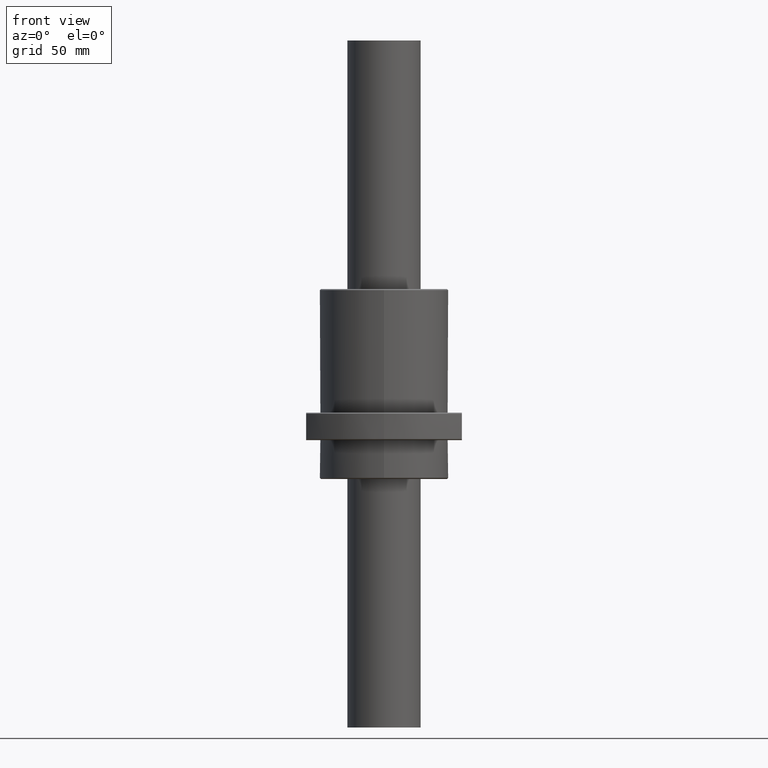
[diagram: clean part render]
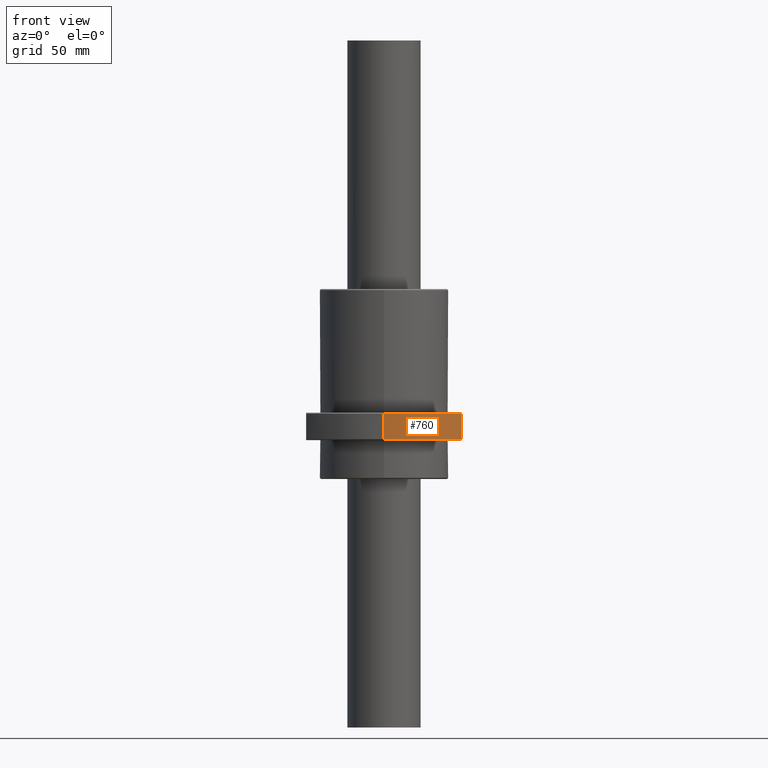
[diagram: same view with one face highlighted and labeled with its STEP entity id]
A machine part, front view. The second image highlights one B-rep face of the part: STEP entity #760.
In plain terms, the highlighted cylindrical surface (partial cylindrical patch) has radius 43 mm, axis along (0, -0, -1).
Its self-contained STEP definition (entity closure, byte-faithful):
#6 = DIRECTION ( 'NONE',  ( 0.0000000000000000000, 0.0000000000000000000, 1.000000000000000000 ) ) ;
#31 = CARTESIAN_POINT ( 'NONE',  ( -15.93204774173488900, -39.94811587899947400, -17.41719730999699700 ) ) ;
#73 = CARTESIAN_POINT ( 'NONE',  ( -0.0001370000000007476300, -43.00000000000000000, -17.41714655021824100 ) ) ;
#130 = CARTESIAN_POINT ( 'NONE',  ( -6.532074896429017800, -42.53238980803332900, -17.41716736127146000 ) ) ;
#135 = B_SPLINE_CURVE_WITH_KNOTS ( 'NONE', 3,
 ( #73, #1207, #615, #183, #564, #130, #1527, #1106, #468, #31, #705, #272, #1757, #1345, #1706, #1299, #658, #215, #1658, #1247, #1695 ),
 .UNSPECIFIED., .F., .F.,
 ( 4, 2, 2, 1, 2, 2, 2, 2, 2, 2, 4 ),
 ( 0.03913872781633277700, 0.04158175396310444200, 0.04402478010987610800, 0.04891083240341943800, 0.05379688469696276100, 0.05623991084373442000, 0.05868293699050608500, 0.06845504157759274600, 0.07089806772436441100, 0.07334109387113607600, 0.07822714616467937900 ),
 .UNSPECIFIED. ) ;
#155 = VECTOR ( 'NONE', #6, 1000.000000000000000 ) ;
#183 = CARTESIAN_POINT ( 'NONE',  ( -3.279114579109889200, -42.88269661388251600, -17.41715699719212300 ) ) ;
#215 = CARTESIAN_POINT ( 'NONE',  ( -30.19508553372177300, -30.62577755368160800, -17.41724275262111700 ) ) ;
#224 = CARTESIAN_POINT ( 'NONE',  ( -0.0001370000000007476300, -43.00000000000000000, -28.58284144978176000 ) ) ;
#226 = CARTESIAN_POINT ( 'NONE',  ( -3.270597403578622500, -43.00000000000000000, -28.58283102994279900 ) ) ;
#233 = CARTESIAN_POINT ( 'NONE',  ( -6.500881856464555900, -42.63168671880733700, -28.58282073811006900 ) ) ;
#236 = CARTESIAN_POINT ( 'NONE',  ( -10.48834494125028400, -41.70932172719074100, -28.58280803387634000 ) ) ;
#238 = CARTESIAN_POINT ( 'NONE',  ( -11.28488067430699700, -41.50099639172775300, -28.58280549607848900 ) ) ;
#247 = CARTESIAN_POINT ( 'NONE',  ( -12.86559516287874200, -41.03849567857266600, -28.58280045985311400 ) ) ;
#248 = CARTESIAN_POINT ( 'NONE',  ( -13.64562254969139900, -40.78564180225023300, -28.58279797465202400 ) ) ;
#260 = CARTESIAN_POINT ( 'NONE',  ( -15.95541770501867200, -39.96373893990972400, -28.58279061554508300 ) ) ;
#262 = CARTESIAN_POINT ( 'NONE',  ( -17.45499414864622200, -39.33154882295027500, -28.58278583783073800 ) ) ;
#265 = CARTESIAN_POINT ( 'NONE',  ( -20.37486540540295400, -37.90136162854620500, -28.58277653499815300 ) ) ;
#269 = CARTESIAN_POINT ( 'NONE',  ( -21.79516189863123200, -37.10336806480484700, -28.58277200987454900 ) ) ;
#272 = CARTESIAN_POINT ( 'NONE',  ( -18.19530987583836200, -38.96925292330801200, -17.41720452084629400 ) ) ;
#277 = CARTESIAN_POINT ( 'NONE',  ( -23.86478398935010100, -35.77917525733073500, -28.58276541597364000 ) ) ;
#279 = CARTESIAN_POINT ( 'NONE',  ( -24.54623687344382400, -35.31524411758171300, -28.58276324483695400 ) ) ;
#282 = CARTESIAN_POINT ( 'NONE',  ( -25.87975198955592000, -34.35000748287867400, -28.58275899620370100 ) ) ;
#284 = CARTESIAN_POINT ( 'NONE',  ( -26.53003136746937000, -33.85016719689219400, -28.58275692438737900 ) ) ;
#292 = CARTESIAN_POINT ( 'NONE',  ( -29.70055982045069600, -31.26644710856489000, -28.58274682295659400 ) ) ;
#293 = CARTESIAN_POINT ( 'NONE',  ( -31.98135604843380300, -28.93230608888319800, -28.58273955625061200 ) ) ;
#295 = CARTESIAN_POINT ( 'NONE',  ( -34.00035220161110800, -26.32455572117558900, -28.58279258083677000 ) ) ;
#405 = VERTEX_POINT ( 'NONE', #1079 ) ;
#468 = CARTESIAN_POINT ( 'NONE',  ( -15.16729078188324600, -40.24456228680390500, -17.41719487344855800 ) ) ;
#564 = CARTESIAN_POINT ( 'NONE',  ( -4.096895637592268700, -42.81219648104543300, -17.41715960267991300 ) ) ;
#574 = DIRECTION ( 'NONE',  ( 0.0000000000000000000, -1.000000000000000000, -8.068481283613055800E-017 ) ) ;
#581 = DIRECTION ( 'NONE',  ( 0.0000000000000000000, -4.034240641806528500E-017, 1.000000000000000000 ) ) ;
#594 = CARTESIAN_POINT ( 'NONE',  ( -0.0001370000000007476300, 0.0000000000000000000, -28.64994524400000100 ) ) ;
#615 = CARTESIAN_POINT ( 'NONE',  ( -1.635763418771073700, -42.97676219843479100, -17.41715176139984300 ) ) ;
#632 = VERTEX_POINT ( 'NONE', #724 ) ;
#654 = CARTESIAN_POINT ( 'NONE',  ( -34.00038099999999700, -26.32457802000000800, -22.99999400000000400 ) ) ;
#658 = CARTESIAN_POINT ( 'NONE',  ( -29.60471295547376900, -31.19689864457267300, -17.41724087167079900 ) ) ;
#662 = DIRECTION ( 'NONE',  ( 0.0000000000000000000, -4.034240641806528500E-017, 1.000000000000000000 ) ) ;
#664 = CARTESIAN_POINT ( 'NONE',  ( -0.0001370000000007476300, -43.00000000000000000, -28.64994524400000500 ) ) ;
#666 = LINE ( 'NONE', #664, #1403 ) ;
#705 = CARTESIAN_POINT ( 'NONE',  ( -17.44945504663784800, -39.30901985386886800, -17.41720214452126600 ) ) ;
#709 = EDGE_CURVE ( 'NONE', #1372, #405, #666, .T. ) ;
#724 = CARTESIAN_POINT ( 'NONE',  ( -34.00035220494341800, -26.32455571687173500, -17.41719541916327100 ) ) ;
#760 = ADVANCED_FACE ( 'NONE', ( #1132 ), #973, .T. ) ;
#767 = CARTESIAN_POINT ( 'NONE',  ( -0.0001370000000007476300, -43.00000000000000000, -28.58284144978176000 ) ) ;
#867 = EDGE_CURVE ( 'NONE', #1775, #1372, #924, .T. ) ;
#901 = CARTESIAN_POINT ( 'NONE',  ( -34.00035220161110800, -26.32455572117558900, -28.58279258083677000 ) ) ;
#924 = B_SPLINE_CURVE_WITH_KNOTS ( 'NONE', 3,
 ( #295, #293, #292, #284, #282, #279, #277, #269, #265, #262, #260, #248, #247, #238, #236, #233, #226, #224 ),
 .UNSPECIFIED., .F., .F.,
 ( 4, 2, 2, 2, 2, 2, 2, 2, 4 ),
 ( 0.0000000000000000000, 0.009784879796429691100, 0.01223109974553711700, 0.01467731969464454100, 0.01956975959285937900, 0.02446219949107422000, 0.02690841944018163700, 0.02935463938928905800, 0.03913951918571873000 ),
 .UNSPECIFIED. ) ;
#973 = CYLINDRICAL_SURFACE ( 'NONE', #1186, 43.00000000000000000 ) ;
#1079 = CARTESIAN_POINT ( 'NONE',  ( -0.0001370000000007476300, -43.00000000000000000, -17.41714655021824100 ) ) ;
#1106 = CARTESIAN_POINT ( 'NONE',  ( -12.85800481944585800, -41.06512662998368800, -17.41718751596392100 ) ) ;
#1132 = FACE_OUTER_BOUND ( 'NONE', #1938, .T. ) ;
#1186 = AXIS2_PLACEMENT_3D ( 'NONE', #594, #581, #574 ) ;
#1187 = EDGE_CURVE ( 'NONE', #405, #632, #135, .T. ) ;
#1207 = CARTESIAN_POINT ( 'NONE',  ( -0.8166830088314353000, -43.00000000000000000, -17.41714915177180600 ) ) ;
#1247 = CARTESIAN_POINT ( 'NONE',  ( -32.99218667138215000, -27.62673956508347200, -17.41725166429464600 ) ) ;
#1299 = CARTESIAN_POINT ( 'NONE',  ( -28.38921322062390500, -32.30693043114374800, -17.41723699904042600 ) ) ;
#1345 = CARTESIAN_POINT ( 'NONE',  ( -24.59679419045763300, -35.42163159705925300, -17.41722491624142300 ) ) ;
#1372 = VERTEX_POINT ( 'NONE', #767 ) ;
#1403 = VECTOR ( 'NONE', #662, 1000.000000000000000 ) ;
#1504 = EDGE_CURVE ( 'NONE', #1775, #632, #1851, .T. ) ;
#1527 = CARTESIAN_POINT ( 'NONE',  ( -9.736597869310971400, -41.97726505018928100, -17.41717757102511000 ) ) ;
#1658 = CARTESIAN_POINT ( 'NONE',  ( -31.91455949740040100, -28.86455105391727800, -17.41724823093264600 ) ) ;
#1695 = CARTESIAN_POINT ( 'NONE',  ( -34.00035220494341800, -26.32455571687173500, -17.41719541916327100 ) ) ;
#1706 = CARTESIAN_POINT ( 'NONE',  ( -27.76702253441822100, -32.84308204690804400, -17.41723501671607700 ) ) ;
#1727 = ORIENTED_EDGE ( 'NONE', *, *, #867, .T. ) ;
#1757 = CARTESIAN_POINT ( 'NONE',  ( -21.86186279596790900, -37.17172010198363100, -17.41721620263805500 ) ) ;
#1775 = VERTEX_POINT ( 'NONE', #901 ) ;
#1776 = ORIENTED_EDGE ( 'NONE', *, *, #1187, .T. ) ;
#1778 = ORIENTED_EDGE ( 'NONE', *, *, #709, .T. ) ;
#1795 = ORIENTED_EDGE ( 'NONE', *, *, #1504, .F. ) ;
#1851 = LINE ( 'NONE', #654, #155 ) ;
#1938 = EDGE_LOOP ( 'NONE', ( #1727, #1778, #1776, #1795 ) ) ;